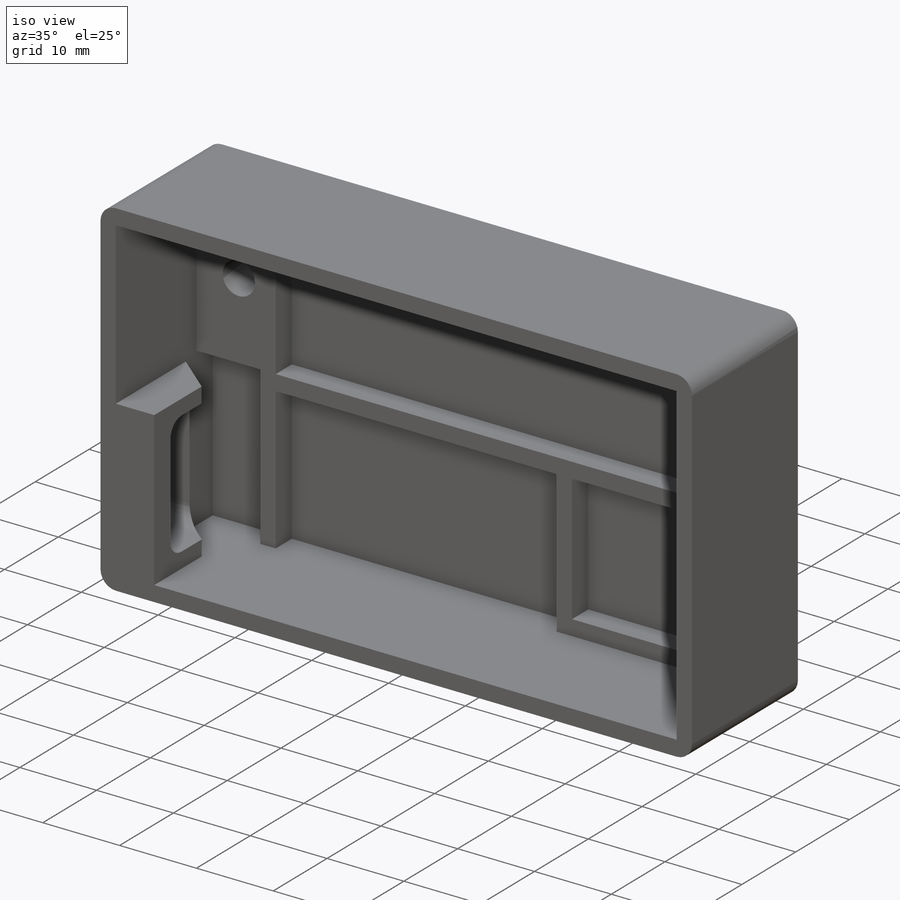
[diagram: iso view]
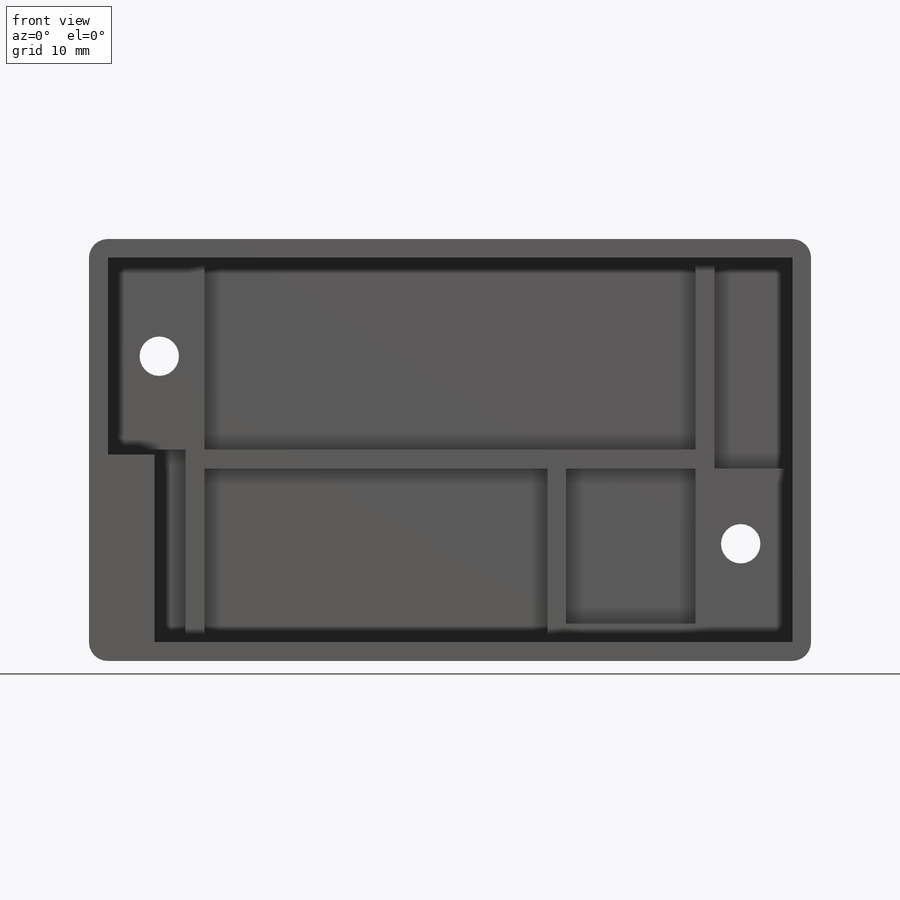
[diagram: front view]
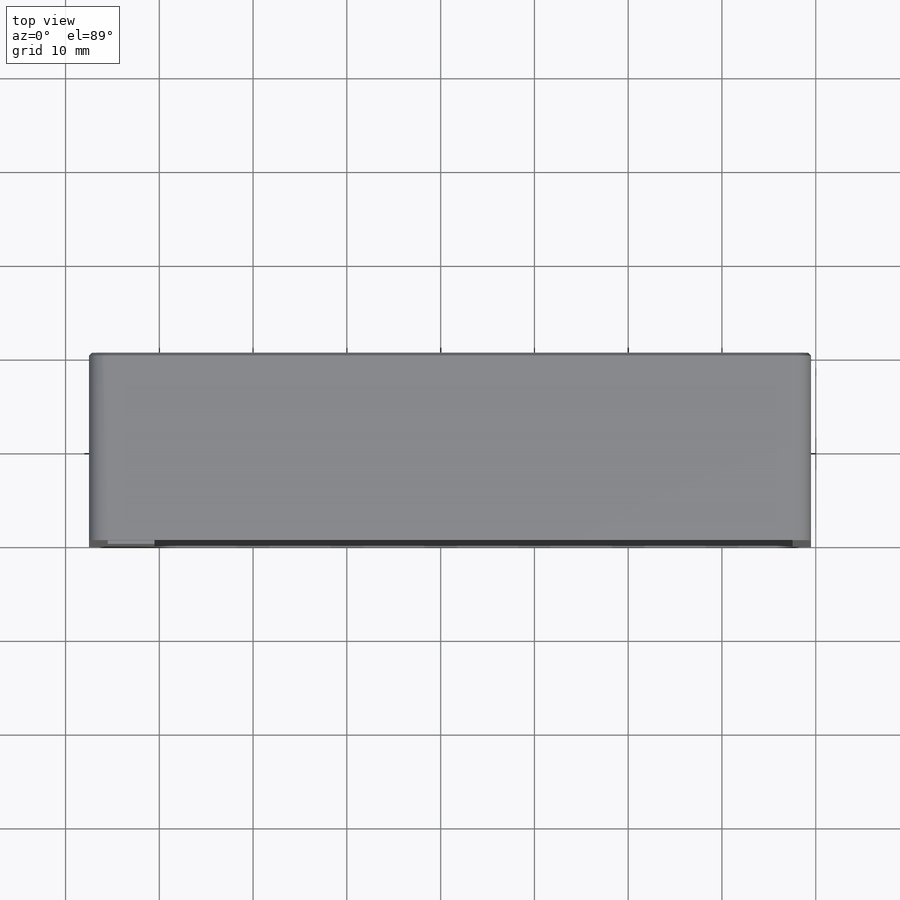
[diagram: top view]
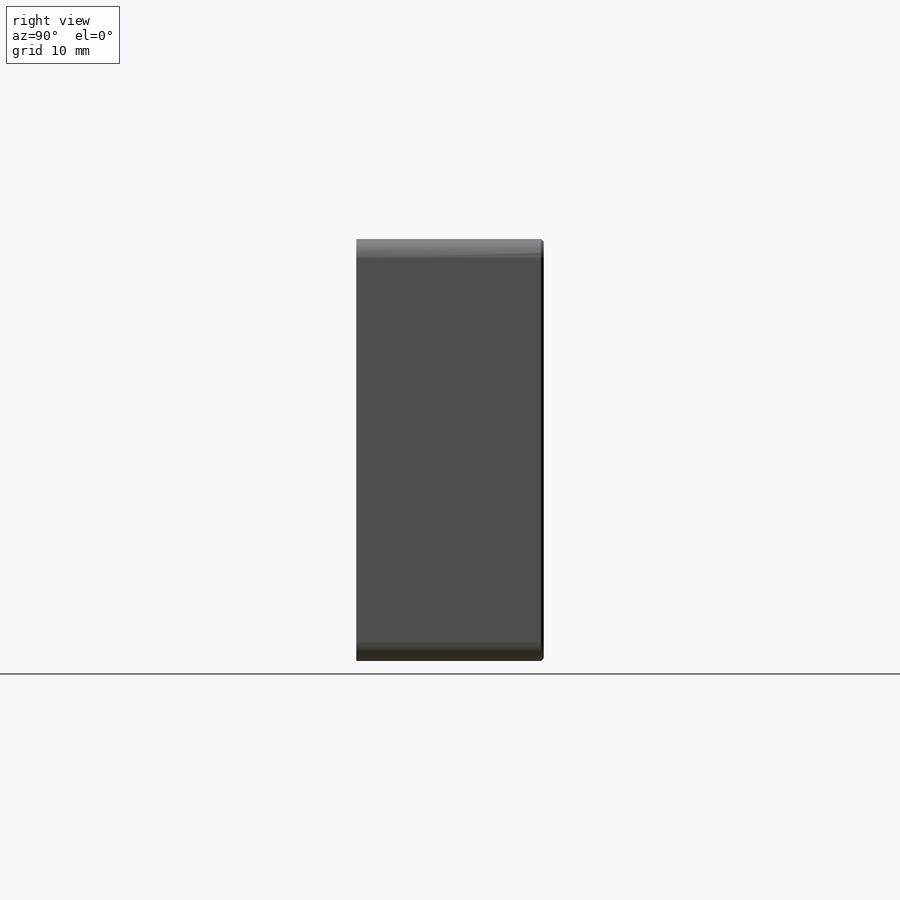
[diagram: right view]
SOLIDWORKS PART (.sldprt)
format: sldprt  version: not decoded by parser v0  size: 449,024 bytes
history: native  units: mm
features: sketch x6, cut_extrude x4, material x1, extrude x1, fillet x1, chamfer x1 (+12 scaffold rows collapsed)
feature tree (26):
  scaffold x12  (default folders/planes/origin — collapsed)
  material  "Custom Plastic"
  sketch  "Sketch1"  dims[D1=62.0mm D2=72.0mm D3=40.0mm D4=5.0mm D5=10.0mm D6=20.0mm]
  sketch  "Sketch2"  dims[D3=4.2mm D4=6.1976mm D1=0.5mm D2=2.0mm]
  extrude  "Boss-Extrude2"  Depth=20mm
  sketch  "Sketch3"  dims[D1=0.5mm D2=20.0mm D3=5.0mm]
  cut_extrude  "Cut-Extrude1"  Depth=5mm
  sketch  "Sketch4"  dims[D1=2.0mm]
  cut_extrude  "Cut-Extrude2"  Depth=2mm
  sketch  "Sketch5"  dims[c1.D3=2.0mm c1.D5=2.0mm c1.D6=2.0mm c1.D7=2.0mm c1.D1=3.0mm c1.D2=12.0mm c2.D3=16.0mm c2.D4=2.0mm c2.D8=16.0mm]
  cut_extrude  "Cut-Extrude3"  [1 undecoded]
  fillet  "Fillet1"  Radius=2mm
  sketch  "Sketch6"  dims[c1.D1=2.0mm c1.D2=~6.303643mm c2.D2=50.0deg c3.D2=~6.527036mm c4.D2=50.0deg]
  cut_extrude  "Cut-Extrude8"  Depth=20mm
  chamfer  "Chamfer1"  Distance=0.3mm Angle=45deg
decode coverage: 12 of 13 modeling features carry decoded parameters
note: ~ marks probable driven/reference dimensions
note: 1 parameter value undecoded
note: suppression state not decoded; provenance and decode notes live in map.json
